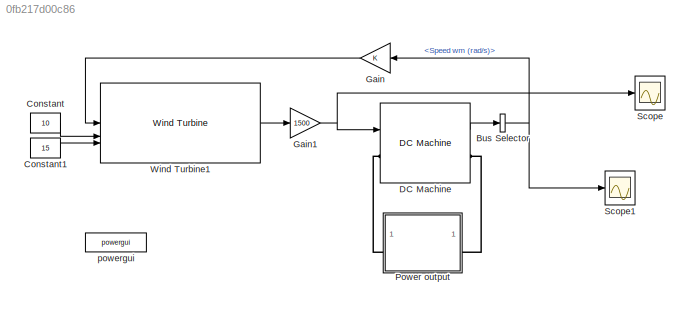
MODEL slx_0fb217d00c86
KIND model
CONFIG AbsTol = auto
CONFIG EnableMultiTasking = off
CONFIG FixedStep = auto
CONFIG MaxStep = auto
CONFIG MinStep = auto
CONFIG RelTol = 1e-3
CONFIG SampleTimeConstraint = Unconstrained
CONFIG SolverName = VariableStepAuto
CONFIG StartTime = 0.0
CONFIG StopTime = 30
BLOCK [BusSelector] Bus Selector
  OutputSignals = Speed wm (rad/s)
BLOCK [Constant] Constant
  Value = 10
BLOCK [Constant] Constant1
  Value = 15
BLOCK [Reference] DC Machine  REF=spsDCMachineLib/DC Machine
  LibrarySourceBlock = sps_lib/Electrical Machines/DC Machine
  SourceBlock = spsDCMachineLib/DC Machine
  SourceType = DC machine
BLOCK [Gain] Gain
BLOCK [Gain] Gain1
  Gain = 1500
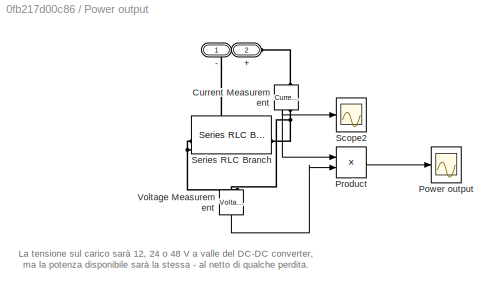
BLOCK [SubSystem] Power output
BLOCK [PMIOPort] Power output/+
  Port = 2
  Side = Left
BLOCK [PMIOPort] Power output/-
  Side = Right
BLOCK [Reference] Power output/Current Measurement  REF=spsCurrentMeasurementLib/Current Measurement
  LibrarySourceBlock = sps_lib/Sensors and Measurements/Current Measurement
  NameLocation = left
  SourceBlock = spsCurrentMeasurementLib/Current Measurement
  SourceType = Current Measurement
  UserDataPersistent = on
BLOCK [Scope] Power output/Power output
  Floating = off
  NumInputPorts = 1
  ScopeSpecificationString = Simulink.scopes.TimeScopeBlockCfg('CurrentConfiguration', extmgr.ConfigurationSet(extmgr.Configuration('Core','General UI',true),extmgr.Configuration('Core','Source UI',true),extmgr.Configuration('Sources','WiredSimulink',true,'DataLoggingVariableName','ScopeData1'),extmgr.Configuration('Visuals','Time Domain',true,'SerializedDisplays',{struct('MinYLimReal','-0.21876','MaxYLimReal','1.96881','YLab...<+1898ch>
BLOCK [Product] Power output/Product
BLOCK [Scope] Power output/Scope2
  Floating = off
  NumInputPorts = 1
  ScopeSpecificationString = Simulink.scopes.TimeScopeBlockCfg('CurrentConfiguration', extmgr.ConfigurationSet(extmgr.Configuration('Core','General UI',true),extmgr.Configuration('Core','Source UI',true),extmgr.Configuration('Sources','WiredSimulink',true,'DataLoggingVariableName','ScopeData1'),extmgr.Configuration('Visuals','Time Domain',true,'SerializedDisplays',{struct('MinYLimReal','-0.47063','MaxYLimReal','0.05229','YLab...<+1795ch>
BLOCK [Reference] Power output/Series RLC Branch  REF=spsSeriesRLCBranchLib/Series RLC Branch
  LibrarySourceBlock = sps_lib/Passives/Series RLC Branch
  SourceBlock = spsSeriesRLCBranchLib/Series RLC Branch
  SourceType = Series RLC Branch
BLOCK [Reference] Power output/Voltage Measurement  REF=spsVoltageMeasurementLib/Voltage Measurement
  LibrarySourceBlock = sps_lib/Sensors and Measurements/Voltage Measurement
  NameLocation = left
  SourceBlock = spsVoltageMeasurementLib/Voltage Measurement
  SourceType = Voltage Measurement
  UserDataPersistent = on
BLOCK [Scope] Scope
  Floating = off
  NumInputPorts = 1
  ScopeSpecificationString = Simulink.scopes.TimeScopeBlockCfg('CurrentConfiguration', extmgr.ConfigurationSet(extmgr.Configuration('Core','General UI',true),extmgr.Configuration('Core','Source UI',true),extmgr.Configuration('Sources','WiredSimulink',true),extmgr.Configuration('Visuals','Time Domain',true,'SerializedDisplays',{struct('MinYLimReal','-1027.88404','MaxYLimReal','113.37681','YLabelReal','','MinYLimMag','  0.00000...<+1829ch>
BLOCK [Scope] Scope1
  Floating = off
  NumInputPorts = 1
  ScopeSpecificationString = Simulink.scopes.TimeScopeBlockCfg('CurrentConfiguration', extmgr.ConfigurationSet(extmgr.Configuration('Core','General UI',true),extmgr.Configuration('Core','Source UI',true),extmgr.Configuration('Sources','WiredSimulink',true,'DataLoggingVariableName','ScopeData1'),extmgr.Configuration('Visuals','Time Domain',true,'SerializedDisplays',{struct('MinYLimReal','0.81822','MaxYLimReal','2.63602','YLabe...<+1516ch>
BLOCK [Reference] Wind Turbine1  REF=spsWindTurbineLib/Wind Turbine
  LibrarySourceBlock = sps_lib/Electrical Machines/Wind Turbine
  SourceBlock = spsWindTurbineLib/Wind Turbine
  SourceType = Wind Turbine
BLOCK [Reference] powergui  REF=sps_lib/powergui
  LibrarySourceBlock = sps_lib/powergui
  Priority = 1
  SourceBlock = sps_lib/powergui
  SourceType = PSB option menu block
ANNOTATION Power output: La tensione sul carico sarà 12, 24 o 48 V a valle del DC-DC converter, ma la potenza disponibile sarà la stessa - al netto di qualche perdita.
NET Bus Selector:1 -> Gain:1, Scope1:1
LINE Constant1:1 -> Wind Turbine1:3
LINE Constant:1 -> Wind Turbine1:2
LINE DC Machine:1 -> Bus Selector:1
NET Gain1:1 -> DC Machine:1, Scope:1
LINE Gain:1 -> Wind Turbine1:1
NET Power output/Current Measurement:1 -> Power output/Product:1, Power output/Scope2:1
LINE Power output/Product:1 -> Power output/Power output:1
LINE Power output/Voltage Measurement:1 -> Power output/Product:2
LINE Wind Turbine1:1 -> Gain1:1
PLINE DC Machine:LConn1 -- Power output:RConn1
PLINE DC Machine:RConn1 -- Power output:LConn1
PLINE Power output/+:RConn1 -- Power output/Current Measurement:LConn1
PNET net1: Power output/-:RConn1 -- Power output/Series RLC Branch:LConn1 -- Power output/Voltage Measurement:LConn2
PNET net2: Power output/Current Measurement:RConn1 -- Power output/Series RLC Branch:RConn1 -- Power output/Voltage Measurement:LConn1
note: NET lines group one-source signal fan-out (src -> all destinations, sorted); 1:1 wires keep LINE; PNET lines group multi-terminal physical nets as a canonical sorted terminal list (undirected conserving connections); 2-terminal nets keep the pairwise PLINE form
